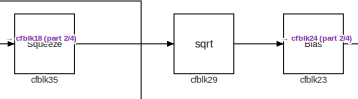
[diagram: root canvas - part 1/4, top left region]
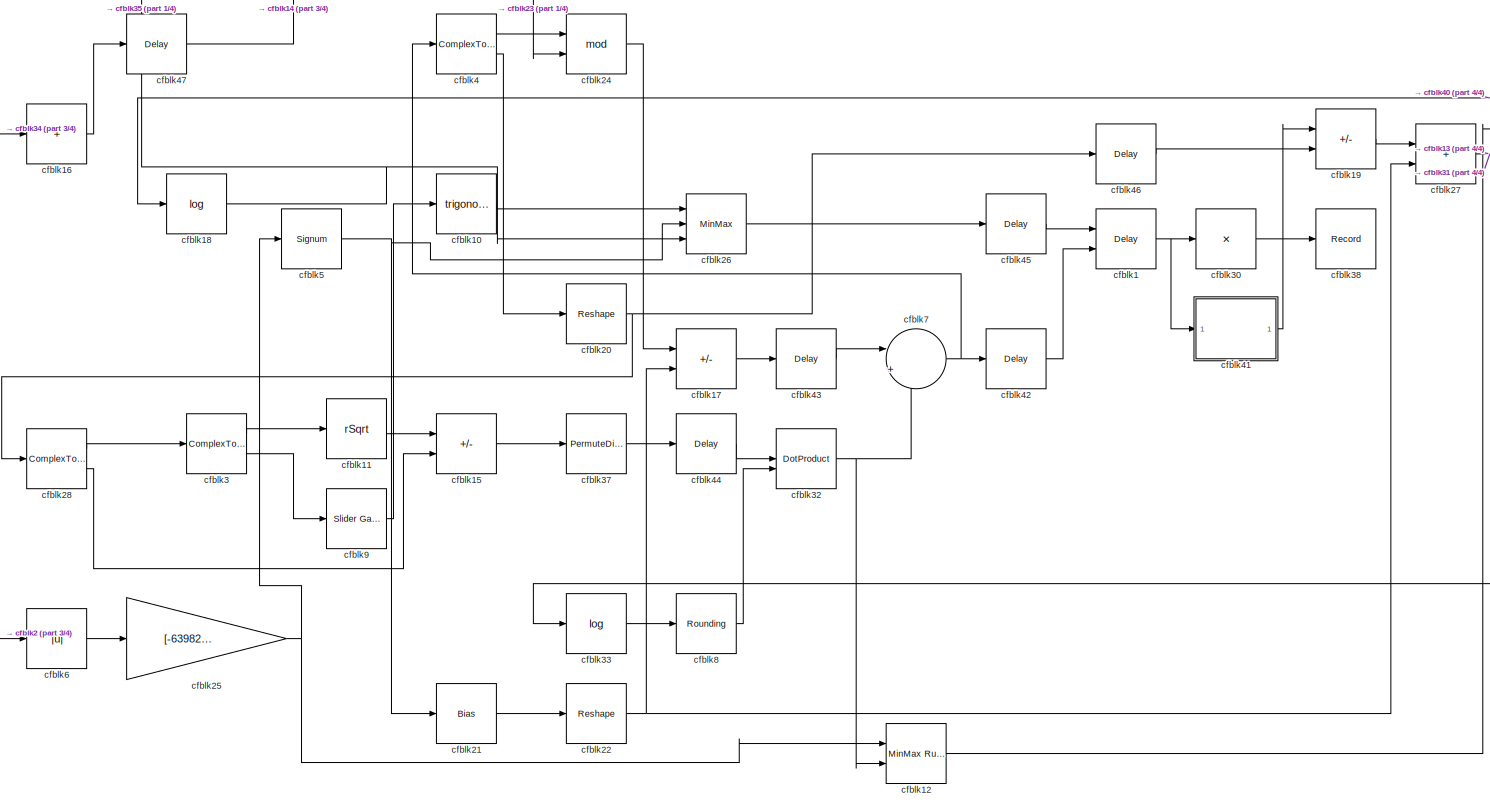
[diagram: root canvas - part 2/4, center side, full height]
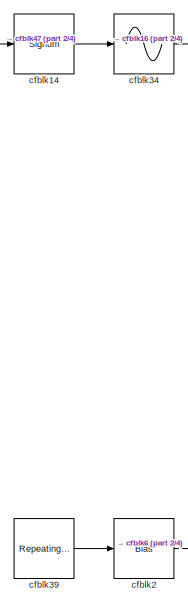
[diagram: root canvas - part 3/4, middle left region]
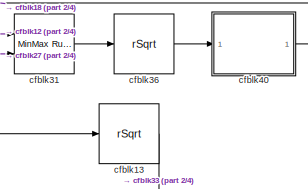
[diagram: root canvas - part 4/4, middle right region]
MODEL slx_fcc636a7de48
KIND model
CONFIG AbsTol = auto
CONFIG EnableMultiTasking = off
CONFIG FixedStep = auto
CONFIG MaxStep = auto
CONFIG MinStep = auto
CONFIG RelTol = 1e-3
CONFIG SampleTimeConstraint = Unconstrained
CONFIG SolverName = VariableStepAuto
CONFIG StartTime = 0.0
CONFIG StopTime = 10.0
BLOCK [Delay] cfblk1
  DelayLengthSource = Input port
  InputPortMap = u0,p1
  Ports = [2, 1]
  SampleTime = 1
BLOCK [Trigonometry] cfblk10
  Ports = [1, 1]
BLOCK [Sqrt] cfblk11
  AlgorithmType = Newton-Raphson
  Operator = rSqrt
BLOCK [Reference] cfblk12  REF=simulink/Math
Operations/MinMax
Running
Resettable
  Ports = [2, 1]
  SourceBlock = simulink/Math\nOperations/MinMax\nRunning\nResettable
  SourceProductBaseCode = SL
  SourceType = MinMax Running Resettable
BLOCK [Sqrt] cfblk13
  AlgorithmType = Newton-Raphson
  Operator = rSqrt
BLOCK [Signum] cfblk14
BLOCK [Sum] cfblk15
  IconShape = rectangular
  Inputs = +-
  Ports = [2, 1]
BLOCK [Sum] cfblk16
  IconShape = rectangular
  Inputs = +
  Ports = [1, 1]
BLOCK [Sum] cfblk17
  IconShape = rectangular
  Inputs = --
  Ports = [2, 1]
BLOCK [Math] cfblk18
  Operator = log
  Ports = [1, 1]
BLOCK [Sum] cfblk19
  IconShape = rectangular
  Inputs = -+
  Ports = [2, 1]
BLOCK [Bias] cfblk2
  Bias = [-827027441.323402]
  SaturateOnIntegerOverflow = off
BLOCK [Reshape] cfblk20
  Ports = [1, 1]
BLOCK [Bias] cfblk21
  Bias = [37678067.293522]
  SaturateOnIntegerOverflow = off
BLOCK [Reshape] cfblk22
  Ports = [1, 1]
BLOCK [Bias] cfblk23
  Bias = [-508900573.952566]
  SaturateOnIntegerOverflow = off
BLOCK [Math] cfblk24
  Operator = mod
  Ports = [2, 1]
BLOCK [Gain] cfblk25
  Gain = [-639825842.943473]
BLOCK [MinMax] cfblk26
  Function = max
  Inputs = 3
  Ports = [3, 1]
BLOCK [Sum] cfblk27
  IconShape = rectangular
  Ports = [2, 1]
BLOCK [ComplexToMagnitudeAngle] cfblk28
  Ports = [1, 2]
BLOCK [Sqrt] cfblk29
BLOCK [ComplexToMagnitudeAngle] cfblk3
  Ports = [1, 2]
BLOCK [Product] cfblk30
  Inputs = *
  Ports = [1, 1]
BLOCK [Reference] cfblk31  REF=simulink/Math
Operations/MinMax
Running
Resettable
  Ports = [2, 1]
  SourceBlock = simulink/Math\nOperations/MinMax\nRunning\nResettable
  SourceProductBaseCode = SL
  SourceType = MinMax Running Resettable
BLOCK [DotProduct] cfblk32
  OutDataTypeStr = Inherit: Inherit via internal rule
BLOCK [Math] cfblk33
  Operator = log
  Ports = [1, 1]
BLOCK [Sin] cfblk34
  Ports = [1, 1]
  SampleTime = 0
  TimeSource = Use external signal
BLOCK [Squeeze] cfblk35
BLOCK [Sqrt] cfblk36
  AlgorithmType = Newton-Raphson
  Operator = rSqrt
BLOCK [PermuteDimensions] cfblk37
BLOCK [Record] cfblk38
  FileSettingsInternal = {"entries":[{"content":{"excelSettings":{"content":{},"type":"Streamout.ExcelSettings"}},"type":"Streamout.FileSettingStorage","uuid":"430283fb-4cde-40db-b94a-ce57bf0f7a74"}],"packageUris":["http://schema.mathworks.com/mf0/streamout_blocks/R2020a"],"version":"1.0"}
  Ports = [1]
  SignalsInternal = {"entries":[{"content":{"signals":[{"content":{"blockPath":["sampleModel799_pp_difftest/cfblk38"],"channel":[],"dimensions":[1],"domain":"sampleModel799_pp_difftest/cfblk38","lineColor":"#22b573","plots":[1],"port":1,"sid":[""],"signalID":1408,"signalName":"cfblk30"},"type":"RecordBlkView.Signal","uuid":"cdcef453-6688-4cef-b7cc-e70f9411fdb5"}]},"type":"RecordBlkView.InputSignals","uuid":"b4ac560c-...<+121ch>
  VisualizationBindings = {"sparklinesplugin":{"info":[{"bindingParametersList":[],"subplotID":1}]}}
BLOCK [Reference] cfblk39  REF=simulink/Sources/Repeating
Sequence
  Ports = [0, 1]
  SourceBlock = simulink/Sources/Repeating\nSequence
  SourceProductBaseCode = SL
  SourceType = Repeating table
BLOCK [ComplexToMagnitudeAngle] cfblk4
  Ports = [1, 2]
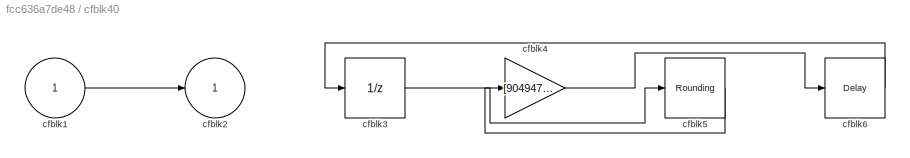
BLOCK [SubSystem] cfblk40
  Ports = [1, 1]
  RequestExecContextInheritance = off
BLOCK [Inport] cfblk40/cfblk1
BLOCK [Outport] cfblk40/cfblk2
BLOCK [UnitDelay] cfblk40/cfblk3
  HasFrameUpgradeWarning = on
BLOCK [Gain] cfblk40/cfblk4
  Gain = [904947333.566220]
BLOCK [Rounding] cfblk40/cfblk5
BLOCK [Delay] cfblk40/cfblk6
  InputPortMap = u0
  Ports = [1, 1]
  SampleTime = 1
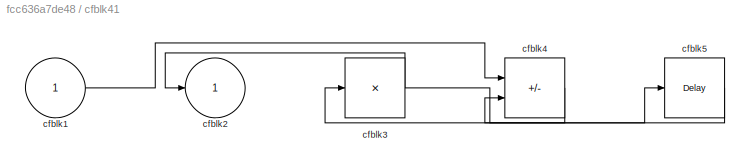
BLOCK [SubSystem] cfblk41
  Ports = [1, 1]
  RequestExecContextInheritance = off
BLOCK [Inport] cfblk41/cfblk1
BLOCK [Outport] cfblk41/cfblk2
BLOCK [Product] cfblk41/cfblk3
  Inputs = *
  Ports = [1, 1]
BLOCK [Sum] cfblk41/cfblk4
  IconShape = rectangular
  Inputs = --
  Ports = [2, 1]
BLOCK [Delay] cfblk41/cfblk5
  InputPortMap = u0
  Ports = [1, 1]
  SampleTime = 1
BLOCK [Delay] cfblk42
  InputPortMap = u0
  Ports = [1, 1]
  SampleTime = 1
BLOCK [Delay] cfblk43
  InputPortMap = u0
  Ports = [1, 1]
  SampleTime = 1
BLOCK [Delay] cfblk44
  InputPortMap = u0
  Ports = [1, 1]
  SampleTime = 1
BLOCK [Delay] cfblk45
  InputPortMap = u0
  Ports = [1, 1]
  SampleTime = 1
BLOCK [Delay] cfblk46
  InputPortMap = u0
  Ports = [1, 1]
  SampleTime = 1
BLOCK [Delay] cfblk47
  InputPortMap = u0
  Ports = [1, 1]
  SampleTime = 1
BLOCK [Signum] cfblk5
BLOCK [Abs] cfblk6
  SaturateOnIntegerOverflow = off
BLOCK [Sum] cfblk7
  Inputs = |++
  Ports = [2, 1]
BLOCK [Rounding] cfblk8
BLOCK [Reference] cfblk9  REF=simulink/Math
Operations/Slider
Gain
  Ports = [1, 1]
  SourceBlock = simulink/Math\nOperations/Slider\nGain
  SourceProductBaseCode = SL
  SourceType = Slider Gain
LINE cfblk10:1 -> cfblk26:1
LINE cfblk11:1 -> cfblk15:1
LINE cfblk12:1 -> cfblk31:1
LINE cfblk13:1 -> cfblk33:1
LINE cfblk14:1 -> cfblk34:1
LINE cfblk15:1 -> cfblk37:1
LINE cfblk16:1 -> cfblk47:1
LINE cfblk17:1 -> cfblk43:1
NET cfblk18:1 -> cfblk26:3, cfblk35:1
LINE cfblk19:1 -> cfblk27:1
NET cfblk1:1 -> cfblk30:1, cfblk41:1
NET cfblk20:1 -> cfblk28:1, cfblk46:1
LINE cfblk21:1 -> cfblk22:1
NET cfblk22:1 -> cfblk17:2, cfblk27:2
LINE cfblk23:1 -> cfblk24:2
LINE cfblk24:1 -> cfblk17:1
NET cfblk25:1 -> cfblk12:1, cfblk5:1
LINE cfblk26:1 -> cfblk45:1
NET cfblk27:1 -> cfblk13:1, cfblk31:2
LINE cfblk28:1 -> cfblk3:1
LINE cfblk28:2 -> cfblk15:2
LINE cfblk29:1 -> cfblk23:1
LINE cfblk2:1 -> cfblk6:1
LINE cfblk30:1 -> cfblk38:1
LINE cfblk31:1 -> cfblk36:1
NET cfblk32:1 -> cfblk12:2, cfblk7:2
LINE cfblk33:1 -> cfblk8:1
LINE cfblk34:1 -> cfblk16:1
LINE cfblk35:1 -> cfblk29:1
LINE cfblk36:1 -> cfblk40:1
LINE cfblk37:1 -> cfblk44:1
LINE cfblk39:1 -> cfblk2:1
LINE cfblk3:1 -> cfblk11:1
LINE cfblk3:2 -> cfblk9:1
LINE cfblk40/cfblk1:1 -> cfblk40/cfblk2:1
LINE cfblk40/cfblk3:1 -> cfblk40/cfblk5:1
LINE cfblk40/cfblk4:1 -> cfblk40/cfblk6:1
LINE cfblk40/cfblk5:1 -> cfblk40/cfblk4:1
LINE cfblk40/cfblk6:1 -> cfblk40/cfblk3:1
LINE cfblk40:1 -> cfblk18:1
LINE cfblk41/cfblk1:1 -> cfblk41/cfblk4:1
NET cfblk41/cfblk3:1 -> cfblk41/cfblk2:1, cfblk41/cfblk5:1
LINE cfblk41/cfblk4:1 -> cfblk41/cfblk3:1
LINE cfblk41/cfblk5:1 -> cfblk41/cfblk4:2
LINE cfblk41:1 -> cfblk19:1
LINE cfblk42:1 -> cfblk1:2
LINE cfblk43:1 -> cfblk7:1
LINE cfblk44:1 -> cfblk32:1
LINE cfblk45:1 -> cfblk1:1
LINE cfblk46:1 -> cfblk19:2
LINE cfblk47:1 -> cfblk14:1
LINE cfblk4:1 -> cfblk24:1
LINE cfblk4:2 -> cfblk20:1
NET cfblk5:1 -> cfblk21:1, cfblk26:2
LINE cfblk6:1 -> cfblk25:1
NET cfblk7:1 -> cfblk42:1, cfblk4:1
LINE cfblk8:1 -> cfblk32:2
LINE cfblk9:1 -> cfblk10:1
note: NET lines group one-source signal fan-out (src -> all destinations, sorted); 1:1 wires keep LINE
